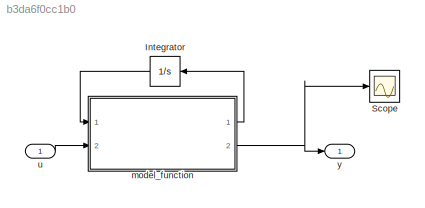
MODEL slx_b3da6f0cc1b0
KIND model
CONFIG AbsTol = auto
CONFIG EnableMultiTasking = off
CONFIG FixedStep = auto
CONFIG MaxStep = auto
CONFIG MinStep = auto
CONFIG RelTol = 1e-3
CONFIG SampleTimeConstraint = Unconstrained
CONFIG Solver = VariableStepAuto
CONFIG SolverName = VariableStepAuto
CONFIG StartTime = 0.0
CONFIG StopTime = 10.0
BLOCK [Integrator] Integrator
  InitialCondition = x_op_linearise
  Ports = [1, 1]
BLOCK [Scope] Scope
  NumInputPorts = 1
  Ports = [1]
  ScopeSpecificationString = Simulink.scopes.TimeScopeBlockCfg('CurrentConfiguration', extmgr.ConfigurationSet(extmgr.Configuration('Core','General UI',true),extmgr.Configuration('Core','Source UI',true),extmgr.Configuration('Sources','WiredSimulink',true),extmgr.Configuration('Visuals','Time Domain',true,'SerializedDisplays',{struct('MinYLimReal','-0.63819','MaxYLimReal','5.84367','YLabelReal','','MinYLimMag','0.00000','MaxY...<+1455ch>
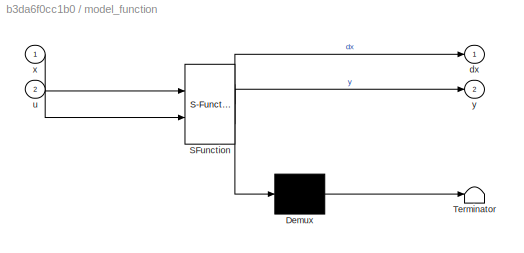
BLOCK [SubSystem] model_function
  ErrorFcn = Stateflow.Translate.translate
  PermitHierarchicalResolution = ExplicitOnly
  Ports = [2, 2]
  RequestExecContextInheritance = off
  SFBlockType = MATLAB Function
  TreatAsAtomicUnit = on
  Variant = off
BLOCK [Demux] model_function/ Demux 
  Outputs = 1
  Ports = [1, 1]
BLOCK [S-Function] model_function/ SFunction 
  EnableBusSupport = on
  FunctionName = sf_sfun
  PortCounts = [2 3]
  Ports = [2, 3]
  SFcnIsStateOwnerBlock = off
  SFunctionDeploymentMode = off
  Tag = Stateflow S-Function sl_model_function_2016 2
BLOCK [Terminator] model_function/ Terminator 
BLOCK [Outport] model_function/dx
  IconDisplay = Port number
BLOCK [Inport] model_function/u
  IconDisplay = Port number
  Port = 2
BLOCK [Inport] model_function/x
  IconDisplay = Port number
BLOCK [Outport] model_function/y
  IconDisplay = Port number
  Port = 2
BLOCK [Inport] u
  IconDisplay = Port number
BLOCK [Outport] y
  IconDisplay = Port number
LINE Integrator:1 -> model_function:1
LINE model_function:1 -> Integrator:1
NET model_function:2 -> Scope:1, y:1
LINE u:1 -> model_function:2
note: NET lines group one-source signal fan-out (src -> all destinations, sorted); 1:1 wires keep LINE
CHART model_function states=1 transitions=1
  STATE_LABEL 'eML_blk_kernel()'
  STATE_LABEL 'SCRIPT:\nfunction [dx, y] = model_function(x, u)\ng = 9.81;\n\nm1 = 0.125;\nc1 = 0.06;\nL1 = 0.1;\nI1 = 0.074;\n\nm2 = 0.05;\nc2 = 0.06;\nL2 = 0.1;\nI2 = 0.00012;\n\nBeta1 = 4.8;\nBeta2 = 0.0002;\nKi = 50;\ntau_e = 0.03;\n\nP1 = m1*c1^2 + m2*L1^2 + I1;\nP2 = m2*c2^2 + I2;\nP3 = m2*L1*c2;\ng1 = (m1*c1 + m2*L1)*g;\ng2 = m2*c2*g;\n\n\nM = [P1+P2+2*P3*cos(x(3)) P2+P3*cos(x(3)) ; ...\n     P2 + P3*cos(x(3))    P2];\n \nC = [Beta1 ...<+338ch>'
